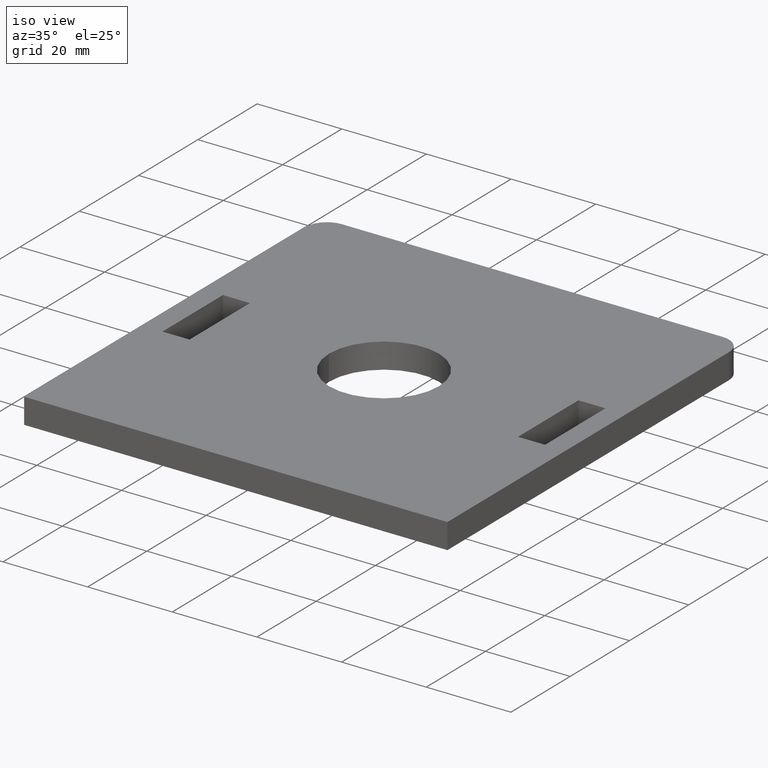
[diagram: clean part render]
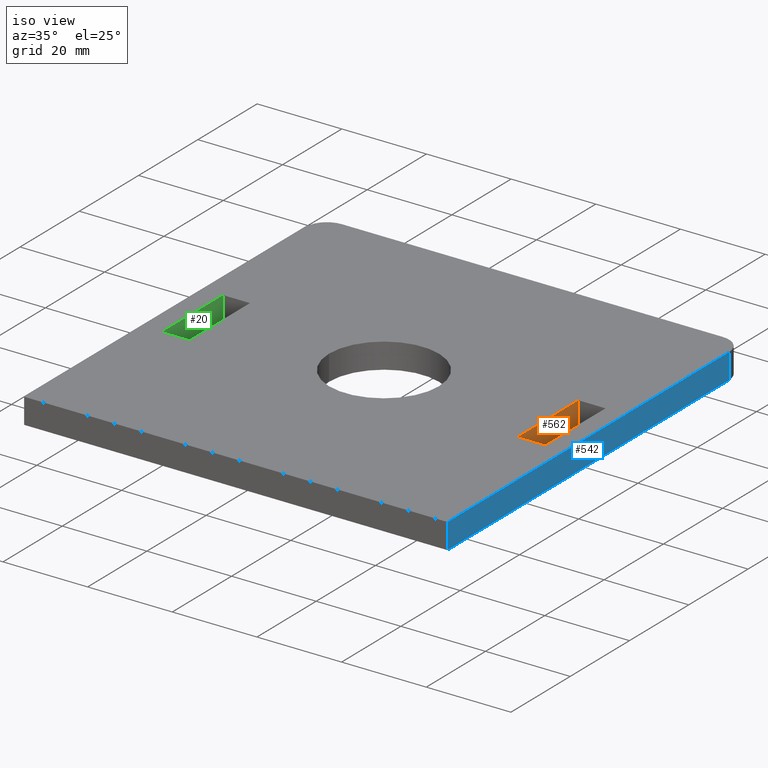
[diagram: same view with three faces highlighted in distinct colors, each labeled with its STEP entity id]
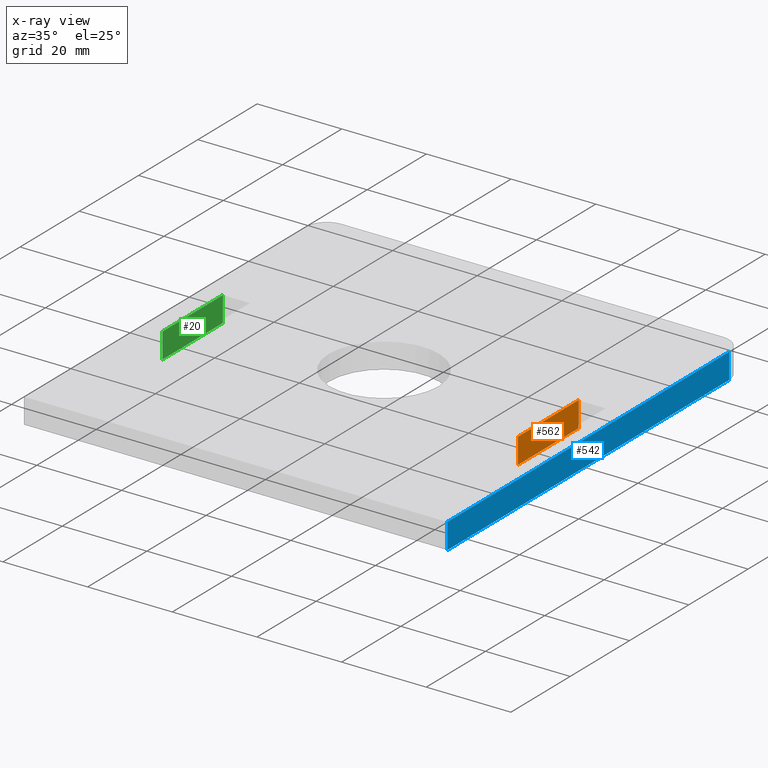
[diagram: x-ray of the same camera — body ghosted, the three highlighted faces saturated]
A machine part, iso view with three faces highlighted in distinct colors.
The next image is the same camera in x-ray (body ghosted, the three faces saturated) — at least one of them is partly hidden behind the body in this view.
Their STEP definitions:

[orange] entity #562 — the highlighted planar face has unit normal (1, 0, 0).
#1 = DIRECTION ( 'NONE',  ( 0.000000000000000000, 0.000000000000000000, -1.000000000000000000 ) ) ;
#31 = CARTESIAN_POINT ( 'NONE',  ( 38.80000000000099902, 10.20000000000043094, 11.99999999999901235 ) ) ;
#53 = CARTESIAN_POINT ( 'NONE',  ( 38.80000000000000426, -10.19999999999998685, -5.999999999999894307 ) ) ;
#65 = CARTESIAN_POINT ( 'NONE',  ( 38.80000000000041638, 10.20000000000065299, -5.551115123125782702E-13 ) ) ;
#105 = VERTEX_POINT ( 'NONE', #128 ) ;
#118 = CARTESIAN_POINT ( 'NONE',  ( 38.80000000000055849, -10.20000000000020890, 11.99999999999978861 ) ) ;
#128 = CARTESIAN_POINT ( 'NONE',  ( 38.80000000000041638, 10.20000000000065299, -5.551115123125782702E-13 ) ) ;
#131 = AXIS2_PLACEMENT_3D ( 'NONE', #31, #433, #379 ) ;
#139 = EDGE_LOOP ( 'NONE', ( #269, #351, #318, #551 ) ) ;
#143 = VECTOR ( 'NONE', #268, 1000.000000000000000 ) ;
#146 = CARTESIAN_POINT ( 'NONE',  ( 38.80000000000028137, 2.220446049250313081E-13, -6.000000000000560441 ) ) ;
#149 = DIRECTION ( 'NONE',  ( -1.805559322863035323E-34, -1.000000000000000000, 1.232595164407830946E-32 ) ) ;
#178 = FACE_OUTER_BOUND ( 'NONE', #139, .T. ) ;
#191 = VECTOR ( 'NONE', #413, 1000.000000000000000 ) ;
#203 = EDGE_CURVE ( 'NONE', #462, #281, #392, .T. ) ;
#208 = CARTESIAN_POINT ( 'NONE',  ( 38.80000000000066507, -10.20000000000031903, -5.551115123125782702E-13 ) ) ;
#247 = EDGE_CURVE ( 'NONE', #105, #462, #650, .T. ) ;
#259 = CARTESIAN_POINT ( 'NONE',  ( 38.80000000000053006, 10.20000000000031903, -5.999999999999672262 ) ) ;
#268 = DIRECTION ( 'NONE',  ( 0.000000000000000000, 0.000000000000000000, -1.000000000000000000 ) ) ;
#269 = ORIENTED_EDGE ( 'NONE', *, *, #247, .F. ) ;
#281 = VERTEX_POINT ( 'NONE', #53 ) ;
#318 = ORIENTED_EDGE ( 'NONE', *, *, #343, .T. ) ;
#343 = EDGE_CURVE ( 'NONE', #344, #281, #370, .T. ) ;
#344 = VERTEX_POINT ( 'NONE', #208 ) ;
#348 = VECTOR ( 'NONE', #149, 1000.000000000000000 ) ;
#351 = ORIENTED_EDGE ( 'NONE', *, *, #412, .F. ) ;
#367 = LINE ( 'NONE', #65, #191 ) ;
#370 = LINE ( 'NONE', #118, #143 ) ;
#375 = PLANE ( 'NONE',  #131 ) ;
#379 = DIRECTION ( 'NONE',  ( 0.000000000000000000, 0.000000000000000000, -1.000000000000000000 ) ) ;
#392 = LINE ( 'NONE', #146, #348 ) ;
#412 = EDGE_CURVE ( 'NONE', #344, #105, #367, .T. ) ;
#413 = DIRECTION ( 'NONE',  ( 1.805559322863035323E-34, 1.000000000000000000, -1.232595164407830946E-32 ) ) ;
#433 = DIRECTION ( 'NONE',  ( 1.000000000000000000, 1.805559322863033398E-34, 0.000000000000000000 ) ) ;
#444 = CARTESIAN_POINT ( 'NONE',  ( 38.80000000000099902, 10.20000000000043094, 11.99999999999901235 ) ) ;
#462 = VERTEX_POINT ( 'NONE', #259 ) ;
#551 = ORIENTED_EDGE ( 'NONE', *, *, #203, .F. ) ;
#562 = ADVANCED_FACE ( 'NONE', ( #178 ), #375, .T. ) ;
#645 = VECTOR ( 'NONE', #1, 1000.000000000000000 ) ;
#650 = LINE ( 'NONE', #444, #645 ) ;

[blue] entity #542 — the highlighted planar face has unit normal (1, 0, 0).
#8 = CARTESIAN_POINT ( 'NONE',  ( 50.00000000000046185, 45.00000000000093081, -6.000000000000005329 ) ) ;
#10 = EDGE_CURVE ( 'NONE', #30, #306, #114, .T. ) ;
#11 = CARTESIAN_POINT ( 'NONE',  ( 50.00000000000065370, -50.00000000000027001, -6.000000000000338396 ) ) ;
#30 = VERTEX_POINT ( 'NONE', #287 ) ;
#114 = LINE ( 'NONE', #416, #231 ) ;
#120 = VECTOR ( 'NONE', #550, 1000.000000000000000 ) ;
#134 = DIRECTION ( 'NONE',  ( 1.000000000000000000, 1.805559322863033398E-34, 0.000000000000000000 ) ) ;
#155 = LINE ( 'NONE', #447, #120 ) ;
#169 = ORIENTED_EDGE ( 'NONE', *, *, #529, .T. ) ;
#185 = CARTESIAN_POINT ( 'NONE',  ( 50.00000000000065370, -50.00000000000027001, -6.000000000000338396 ) ) ;
#210 = DIRECTION ( 'NONE',  ( 1.805559322863035323E-34, 1.000000000000000000, -1.232595164407830946E-32 ) ) ;
#220 = DIRECTION ( 'NONE',  ( 1.805559322863035323E-34, 1.000000000000000000, -1.232595164407830946E-32 ) ) ;
#221 = EDGE_CURVE ( 'NONE', #478, #30, #155, .T. ) ;
#231 = VECTOR ( 'NONE', #220, 1000.000000000000000 ) ;
#240 = CARTESIAN_POINT ( 'NONE',  ( 50.00000000000018474, 45.00000000000070344, -5.551115123125782702E-13 ) ) ;
#282 = VECTOR ( 'NONE', #210, 1000.000000000000000 ) ;
#287 = CARTESIAN_POINT ( 'NONE',  ( 50.00000000000065370, -50.00000000000027001, -9.992007221626408864E-13 ) ) ;
#306 = VERTEX_POINT ( 'NONE', #240 ) ;
#336 = PLANE ( 'NONE',  #625 ) ;
#339 = ORIENTED_EDGE ( 'NONE', *, *, #10, .F. ) ;
#356 = ORIENTED_EDGE ( 'NONE', *, *, #374, .T. ) ;
#365 = EDGE_LOOP ( 'NONE', ( #356, #169, #339, #500 ) ) ;
#374 = EDGE_CURVE ( 'NONE', #478, #403, #572, .T. ) ;
#403 = VERTEX_POINT ( 'NONE', #8 ) ;
#410 = VECTOR ( 'NONE', #576, 1000.000000000000000 ) ;
#416 = CARTESIAN_POINT ( 'NONE',  ( 50.00000000000065370, -50.00000000000027001, -9.992007221626408864E-13 ) ) ;
#424 = FACE_OUTER_BOUND ( 'NONE', #365, .T. ) ;
#431 = DIRECTION ( 'NONE',  ( 0.000000000000000000, 0.000000000000000000, -1.000000000000000000 ) ) ;
#447 = CARTESIAN_POINT ( 'NONE',  ( 50.00000000000065370, -50.00000000000027001, -6.000000000000338396 ) ) ;
#473 = CARTESIAN_POINT ( 'NONE',  ( 50.00000000000046185, 45.00000000000093081, -6.000000000000005329 ) ) ;
#478 = VERTEX_POINT ( 'NONE', #512 ) ;
#485 = LINE ( 'NONE', #473, #410 ) ;
#500 = ORIENTED_EDGE ( 'NONE', *, *, #221, .F. ) ;
#512 = CARTESIAN_POINT ( 'NONE',  ( 50.00000000000065370, -50.00000000000027001, -6.000000000000338396 ) ) ;
#529 = EDGE_CURVE ( 'NONE', #403, #306, #485, .T. ) ;
#542 = ADVANCED_FACE ( 'NONE', ( #424 ), #336, .T. ) ;
#550 = DIRECTION ( 'NONE',  ( 0.000000000000000000, 0.000000000000000000, 1.000000000000000000 ) ) ;
#572 = LINE ( 'NONE', #11, #282 ) ;
#576 = DIRECTION ( 'NONE',  ( 0.000000000000000000, 0.000000000000000000, 1.000000000000000000 ) ) ;
#625 = AXIS2_PLACEMENT_3D ( 'NONE', #185, #134, #431 ) ;

[green] entity #20 — the highlighted planar face has unit normal (1, 0, 0).
#20 = ADVANCED_FACE ( 'NONE', ( #125 ), #224, .T. ) ;
#21 = ORIENTED_EDGE ( 'NONE', *, *, #275, .F. ) ;
#46 = AXIS2_PLACEMENT_3D ( 'NONE', #360, #309, #458 ) ;
#49 = CARTESIAN_POINT ( 'NONE',  ( -45.19999999999968310, -10.20000000000020890, 11.99999999999990052 ) ) ;
#104 = LINE ( 'NONE', #293, #112 ) ;
#112 = VECTOR ( 'NONE', #497, 1000.000000000000000 ) ;
#124 = DIRECTION ( 'NONE',  ( 1.805559322863035323E-34, 1.000000000000000000, -1.232595164407830946E-32 ) ) ;
#125 = FACE_OUTER_BOUND ( 'NONE', #409, .T. ) ;
#159 = DIRECTION ( 'NONE',  ( 0.000000000000000000, 0.000000000000000000, -1.000000000000000000 ) ) ;
#199 = CARTESIAN_POINT ( 'NONE',  ( -45.19999999999957652, 10.19999999999965468, -5.551115123125782702E-13 ) ) ;
#202 = LINE ( 'NONE', #49, #272 ) ;
#224 = PLANE ( 'NONE',  #46 ) ;
#225 = CARTESIAN_POINT ( 'NONE',  ( -45.19999999999996021, 10.19999999999987494, -5.999999999999894307 ) ) ;
#232 = CARTESIAN_POINT ( 'NONE',  ( -45.19999999999973994, -10.20000000000031903, -6.000000000000782485 ) ) ;
#272 = VECTOR ( 'NONE', #159, 1000.000000000000000 ) ;
#275 = EDGE_CURVE ( 'NONE', #320, #540, #104, .T. ) ;
#293 = CARTESIAN_POINT ( 'NONE',  ( -45.19999999999934914, 10.20000000000009877, 11.99999999999923261 ) ) ;
#295 = ORIENTED_EDGE ( 'NONE', *, *, #311, .T. ) ;
#309 = DIRECTION ( 'NONE',  ( 1.000000000000000000, 1.805559322863033398E-34, 0.000000000000000000 ) ) ;
#311 = EDGE_CURVE ( 'NONE', #566, #516, #202, .T. ) ;
#320 = VERTEX_POINT ( 'NONE', #199 ) ;
#360 = CARTESIAN_POINT ( 'NONE',  ( -45.19999999999934914, 10.20000000000009877, 11.99999999999923261 ) ) ;
#362 = CARTESIAN_POINT ( 'NONE',  ( -45.19999999999957652, 10.19999999999965468, -5.551115123125782702E-13 ) ) ;
#384 = LINE ( 'NONE', #421, #617 ) ;
#405 = LINE ( 'NONE', #362, #558 ) ;
#409 = EDGE_LOOP ( 'NONE', ( #21, #603, #295, #467 ) ) ;
#421 = CARTESIAN_POINT ( 'NONE',  ( -45.19999999999979678, -2.220446049250313081E-13, -5.999999999999783284 ) ) ;
#423 = EDGE_CURVE ( 'NONE', #566, #320, #405, .T. ) ;
#458 = DIRECTION ( 'NONE',  ( 0.000000000000000000, 0.000000000000000000, -1.000000000000000000 ) ) ;
#467 = ORIENTED_EDGE ( 'NONE', *, *, #602, .F. ) ;
#497 = DIRECTION ( 'NONE',  ( 0.000000000000000000, 0.000000000000000000, -1.000000000000000000 ) ) ;
#516 = VERTEX_POINT ( 'NONE', #232 ) ;
#527 = DIRECTION ( 'NONE',  ( -1.805559322863035323E-34, -1.000000000000000000, 1.232595164407830946E-32 ) ) ;
#540 = VERTEX_POINT ( 'NONE', #225 ) ;
#558 = VECTOR ( 'NONE', #124, 1000.000000000000000 ) ;
#566 = VERTEX_POINT ( 'NONE', #641 ) ;
#602 = EDGE_CURVE ( 'NONE', #540, #516, #384, .T. ) ;
#603 = ORIENTED_EDGE ( 'NONE', *, *, #423, .F. ) ;
#617 = VECTOR ( 'NONE', #527, 1000.000000000000000 ) ;
#641 = CARTESIAN_POINT ( 'NONE',  ( -45.19999999999968310, -10.20000000000031903, -9.992007221626408864E-13 ) ) ;